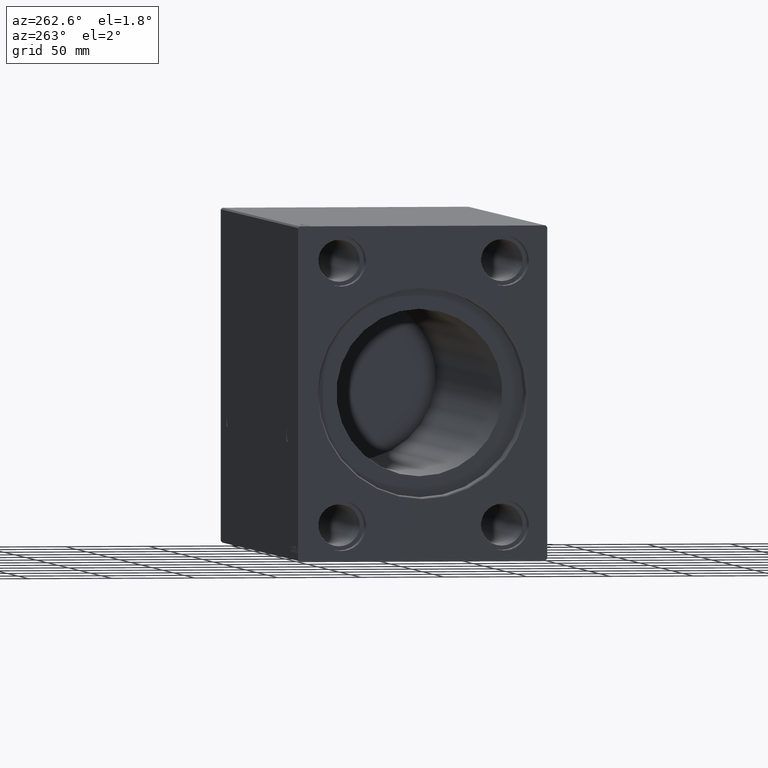
[diagram: clean part render]
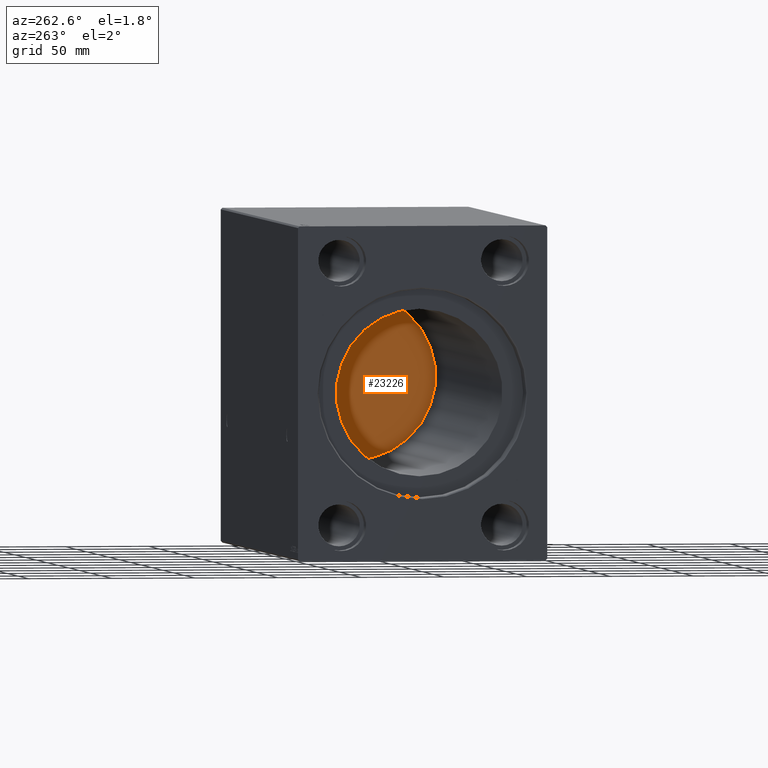
[diagram: same view with one face highlighted and labeled with its STEP entity id]
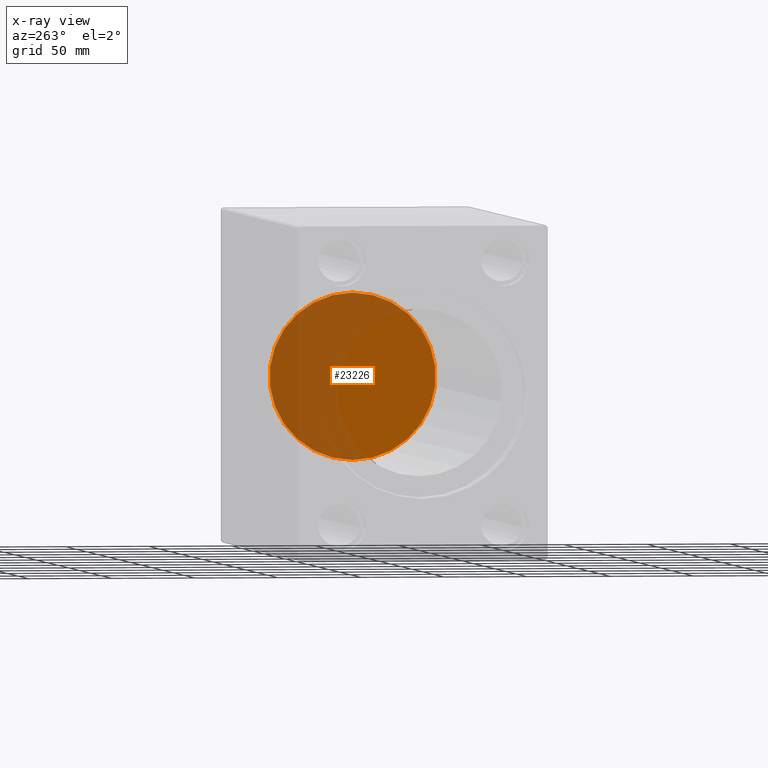
[diagram: x-ray of the same camera — body ghosted, the highlighted face saturated]
A machine part, auxiliary view. The second image highlights one B-rep face of the part: STEP entity #23226.
The next image is the same camera in x-ray: the body ghosted, the highlighted face saturated — about 51% of this face is hidden behind the body in this view.
In plain terms, the highlighted planar face has unit normal (-1, 0, 0).
Its self-contained STEP definition (entity closure, byte-faithful):
#446 = CARTESIAN_POINT ( 'NONE',  ( 324.6999999999999886, 0.000000000000000000, 50.00000000000000000 ) ) ;
#638 = DIRECTION ( 'NONE',  ( 0.000000000000000000, 0.000000000000000000, 1.000000000000000000 ) ) ;
#2859 = CARTESIAN_POINT ( 'NONE',  ( 324.6999999999999886, 0.000000000000000000, 0.000000000000000000 ) ) ;
#3313 = AXIS2_PLACEMENT_3D ( 'NONE', #29443, #36505, #638 ) ;
#4296 = DIRECTION ( 'NONE',  ( -1.000000000000000000, 0.000000000000000000, 0.000000000000000000 ) ) ;
#6870 = DIRECTION ( 'NONE',  ( 0.000000000000000000, 0.000000000000000000, 1.000000000000000000 ) ) ;
#9049 = ORIENTED_EDGE ( 'NONE', *, *, #15179, .T. ) ;
#9528 = ORIENTED_EDGE ( 'NONE', *, *, #14326, .T. ) ;
#13964 = DIRECTION ( 'NONE',  ( 0.000000000000000000, 0.000000000000000000, 1.000000000000000000 ) ) ;
#14326 = EDGE_CURVE ( 'NONE', #20243, #39696, #34845, .T. ) ;
#15179 = EDGE_CURVE ( 'NONE', #39696, #20243, #41078, .T. ) ;
#20157 = DIRECTION ( 'NONE',  ( -1.000000000000000000, 0.000000000000000000, 0.000000000000000000 ) ) ;
#20243 = VERTEX_POINT ( 'NONE', #26955 ) ;
#22975 = CARTESIAN_POINT ( 'NONE',  ( 324.6999999999999886, 0.000000000000000000, 0.000000000000000000 ) ) ;
#23226 = ADVANCED_FACE ( 'NONE', ( #39294 ), #26423, .T. ) ;
#26305 = EDGE_LOOP ( 'NONE', ( #9049, #9528 ) ) ;
#26423 = PLANE ( 'NONE',  #27585 ) ;
#26955 = CARTESIAN_POINT ( 'NONE',  ( 324.6999999999999886, 6.123233995736766085E-15, -50.00000000000000000 ) ) ;
#27585 = AXIS2_PLACEMENT_3D ( 'NONE', #22975, #20157, #6870 ) ;
#29443 = CARTESIAN_POINT ( 'NONE',  ( 324.6999999999999886, 0.000000000000000000, 0.000000000000000000 ) ) ;
#34223 = AXIS2_PLACEMENT_3D ( 'NONE', #2859, #4296, #13964 ) ;
#34845 = CIRCLE ( 'NONE', #3313, 50.00000000000000000 ) ;
#36505 = DIRECTION ( 'NONE',  ( -1.000000000000000000, 0.000000000000000000, 0.000000000000000000 ) ) ;
#39294 = FACE_OUTER_BOUND ( 'NONE', #26305, .T. ) ;
#39696 = VERTEX_POINT ( 'NONE', #446 ) ;
#41078 = CIRCLE ( 'NONE', #34223, 50.00000000000000000 ) ;